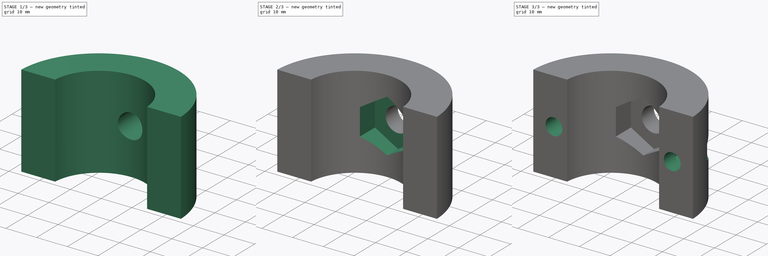
[diagram: build sequence overview — one tinted view per stage of 3, left to right]
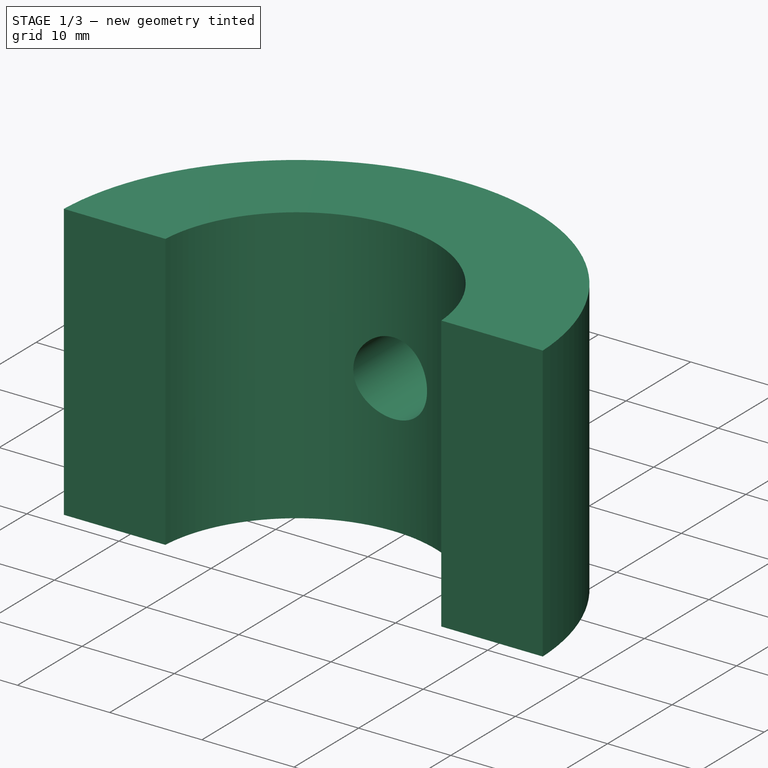
[diagram: stage 1 of 3 — iso view after this stage's code; geometry added in this stage tinted green]
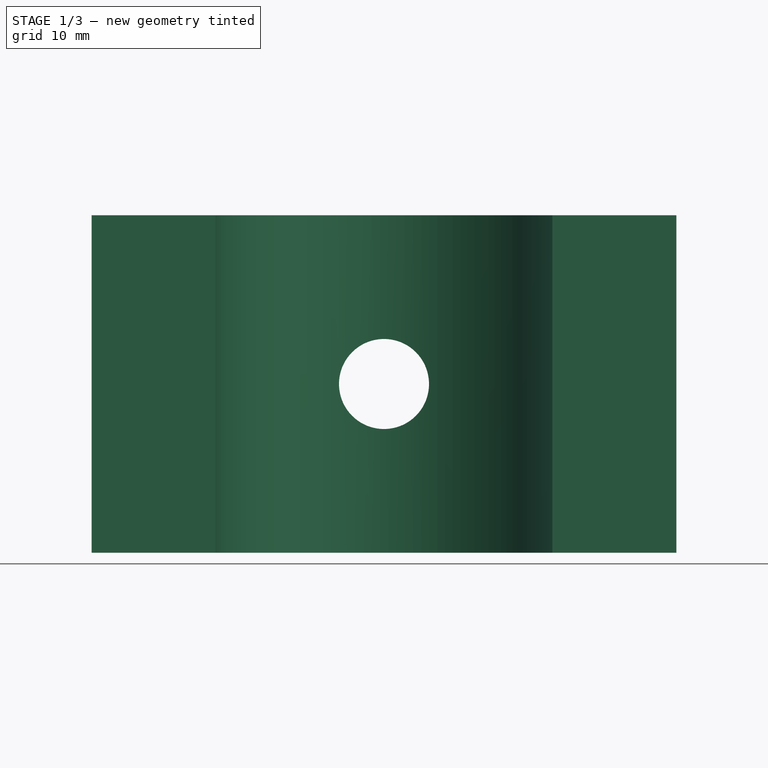
[diagram: stage 1 of 3 — front view after this stage's code; geometry added in this stage tinted green]
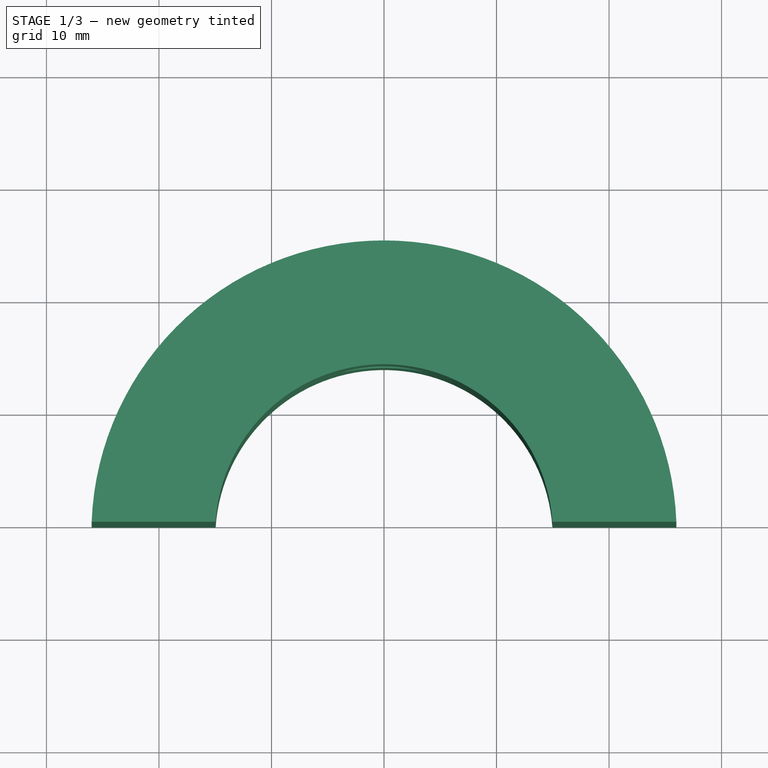
[diagram: stage 1 of 3 — top view after this stage's code; geometry added in this stage tinted green]
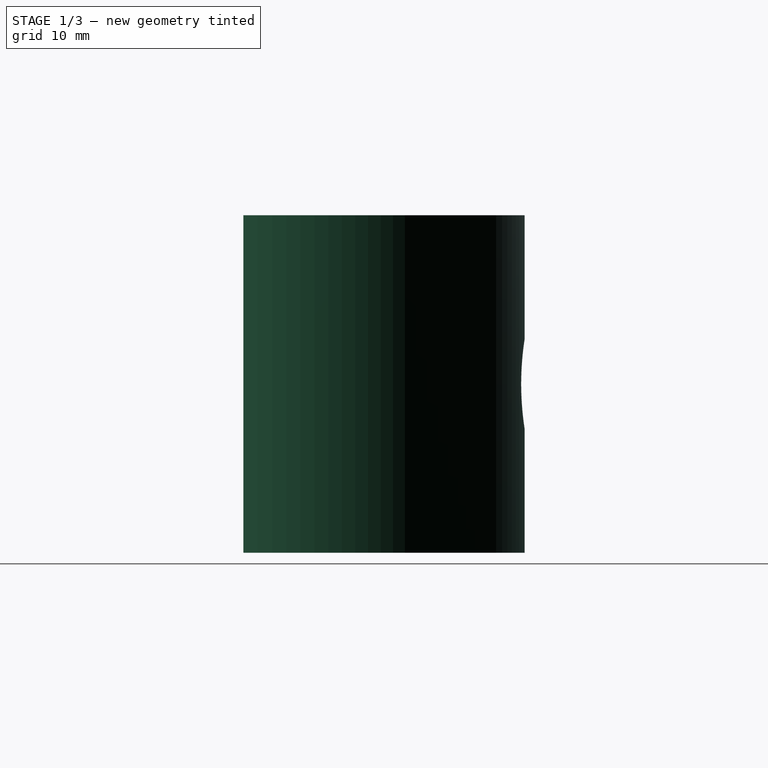
[diagram: stage 1 of 3 — right view after this stage's code; geometry added in this stage tinted green]
FCSTD DOCUMENT  (FreeCAD 1.0R39109 (Git))
Label: Landmine Adapter V2
License: All rights reserved
LicenseURL: http://en.wikipedia.org/wiki/All_rights_reserved
objects: Sketcher::SketchObject×5, PartDesign::Plane×4, PartDesign::Pocket×4, Spreadsheet::Sheet×1, PartDesign::Pad×1, PartDesign::Body×1
note: 30 computed .brp shape members not serialized (recipe doc carries the construction recipe); baked Part::Feature solids carry a one-line shape summary decoded from their .brp

FEATURE [Sketcher::SketchObject] Sketch
  ArcFitTolerance = 1e-06
  AttachmentSupport = -> [XY_Plane]
  FullyConstrained = true
  MakeInternals = false
  MapMode = 5
  expr: Constraints[10] = Spreadsheet.outer_diameter
  expr: Constraints[8] = Spreadsheet.gap / 2
  expr: Constraints[9] = Spreadsheet.inner_diameter
  sketch-geometry (4):
    g0: LineSegment StartX=-25.9808 StartY=-2.1e-15 StartZ=0 EndX=-14.9666 EndY=-2.1e-15 EndZ=0
    g1: ArcOfCircle CenterX=0 CenterY=-1 CenterZ=0 NormalX=0 NormalY=0 NormalZ=1 AngleXU=0 Radius=15 StartAngle=0.0667161 EndAngle=3.07488
    g2: ArcOfCircle CenterX=0 CenterY=-1 CenterZ=0 NormalX=0 NormalY=0 NormalZ=1 AngleXU=0 Radius=26 StartAngle=0.038471 EndAngle=3.10312
    g3: LineSegment StartX=14.9666 StartY=7e-16 StartZ=0 EndX=25.9808 EndY=-4e-16 EndZ=0
  constraints (13):
    c: Horizontal(g0,g-1)
    c: Horizontal(g0)
    c: Horizontal(g1,g-1)
    c: Coincident(g1,g0)
    c: Vertical(g1,g-1)
    c: Coincident(g2,g1)
    c: PointOnObject(g2,g-1)
    c: Coincident(g2,g0)
    c: DistanceY(g1,g-1) = 1
    c: Diameter(g1) = 30
    c: Diameter(g2) = 52
    c: Coincident(g3,g1)
    c: Coincident(g3,g2)
FEATURE [Spreadsheet::Sheet] Spreadsheet
  cells = A1='inner_diameter; B1(inner_diameter)=30; A2='outer_diameter; B2(outer_diameter)=52; A3='nut_width_across_flats; B3(nut_width_across_flats)=8.5; A4='screw_hole_diameter; B4(screw_hole_diameter)=5.5; A5='screw_head_diameter; B5(screw_head_diameter)=9.5; A6='gap; B6(gap)=2; A7='screw_nut_supporting_thickness; B7(screw_nut_supporting_thickness)=5; A8='length; B8(length)=30; A9='set_screw_hole_diameter; B9(set_screw_hole_diameter)=8; A10='set_nut_height; B10(set_nut_height)=5; A11='set_nut_width_across_flats; B11(set_nut_width_across_flats)=15; A12='set_screw_hole_height; B12(set_screw_hole_height)=20; A13='screw_hole_inward_offset; B13(screw_hole_inward_offset)=1.25
FEATURE [PartDesign::Pad] Pad
  Direction = (0,0,1)
  Length = 30
  Length2 = 10
  Profile = -> Sketch
  ReferenceAxis = -> Sketch [N_Axis]
  Suppressed = false
  Type = 0
  expr: Length = Spreadsheet.length
FEATURE [PartDesign::Plane] DatumPlane
  AttachmentOffset = pos=(0,0,26) rot=(0,0,1;0rad)
  AttachmentSupport = -> [XZ_Plane]
  Length = 62.6534
  MapMode = 2
  Placement = pos=(0,26,-5.8e-15) rot=(0,0.707107,0.707107;3.14159rad)
  ResizeMode = 0
  Width = 65.6918
  expr: .AttachmentOffset.Base.z = Spreadsheet.outer_diameter / 2
FEATURE [Sketcher::SketchObject] Sketch001
  ArcFitTolerance = 1e-06
  AttachmentSupport = -> [DatumPlane]
  FullyConstrained = true
  MakeInternals = false
  MapMode = 5
  Placement = pos=(0,26,-5.8e-15) rot=(0,0.707107,0.707107;3.14159rad)
  expr: Constraints[1] = Spreadsheet.set_screw_hole_diameter
  expr: Constraints[2] = Spreadsheet.length / 2
  sketch-geometry (1):
    g0: Circle CenterX=0 CenterY=15 CenterZ=0 NormalX=0 NormalY=0 NormalZ=1 AngleXU=0 Radius=4
  constraints (3):
    c: Vertical(g0,g-1)
    c: Diameter(g0) = 8
    c: DistanceY(g-1,g0) = 15
FEATURE [PartDesign::Pocket] Pocket
  BaseFeature = -> Pad
  Direction = (0,-1,2e-16)
  Length = 5
  Length2 = 5
  Profile = -> Sketch001
  ReferenceAxis = -> Sketch001 [N_Axis]
  Suppressed = false
  Type = 1
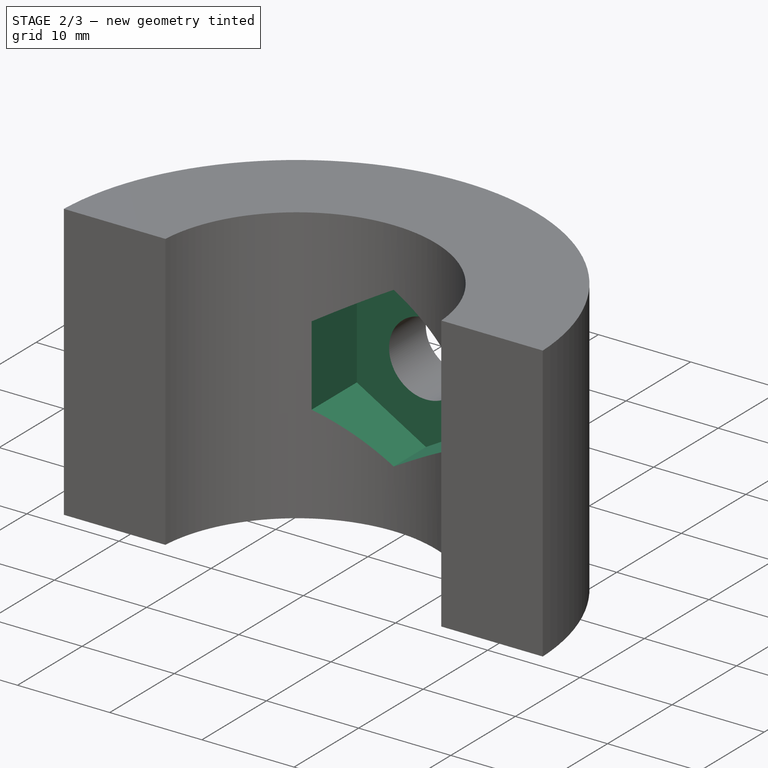
[diagram: stage 2 of 3 — iso view after this stage's code; geometry added in this stage tinted green]
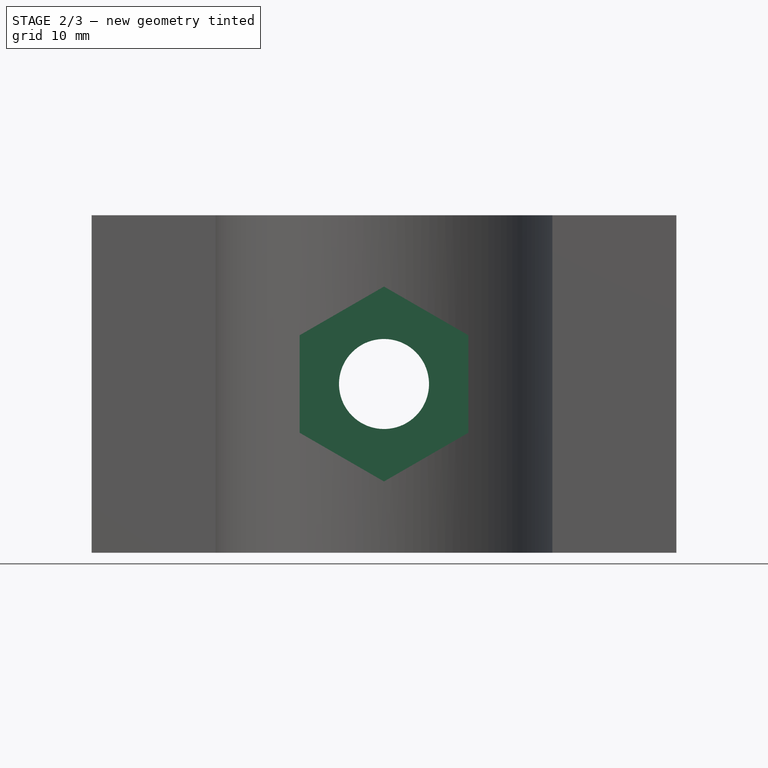
[diagram: stage 2 of 3 — front view after this stage's code; geometry added in this stage tinted green]
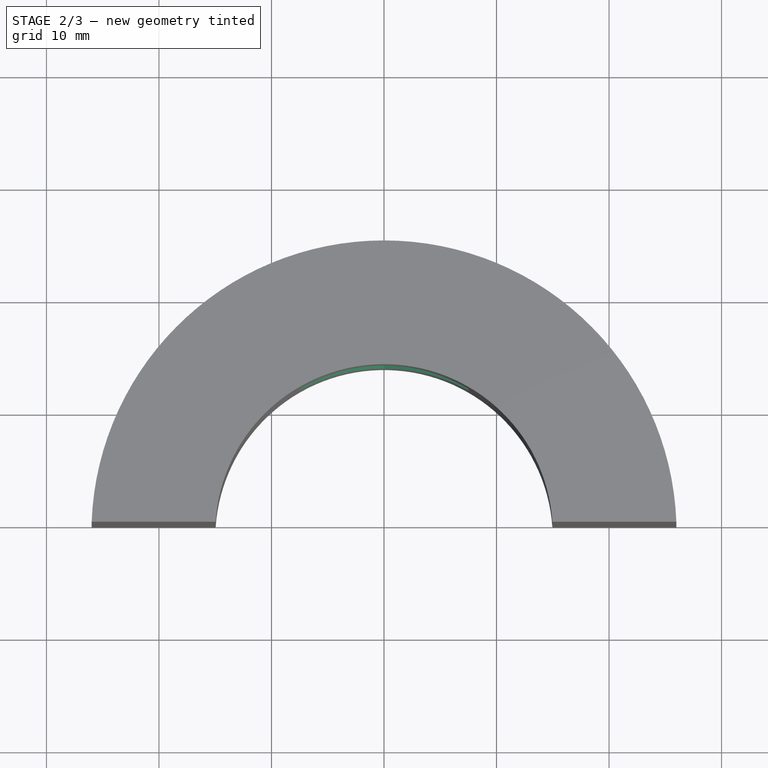
[diagram: stage 2 of 3 — top view after this stage's code; geometry added in this stage tinted green]
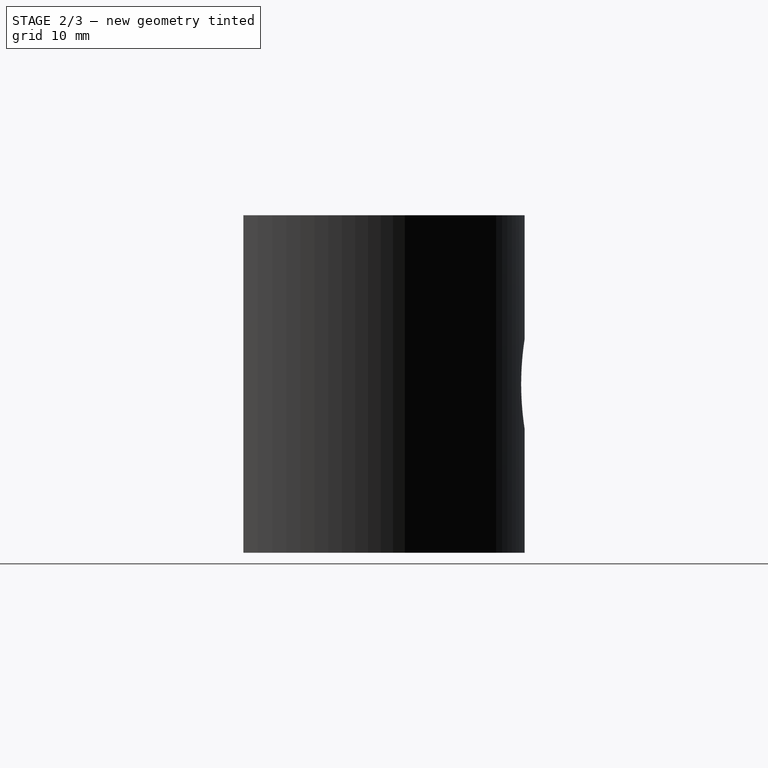
[diagram: stage 2 of 3 — right view after this stage's code; geometry added in this stage tinted green]
FEATURE [PartDesign::Plane] DatumPlane001
  AttachmentOffset = pos=(0,0,19) rot=(0,0,1;0rad)
  AttachmentSupport = -> [Pad]
  Length = 62.6534
  MapMode = 5
  Placement = pos=(0,19,-4.2e-15) rot=(0,0.707107,0.707107;3.14159rad)
  ResizeMode = 0
  Width = 65.6918
  expr: .AttachmentOffset.Base.z = Spreadsheet.inner_diameter / 2 - Spreadsheet.gap / 2 + Spreadsheet.set_nut_height
FEATURE [Sketcher::SketchObject] Sketch002
  ArcFitTolerance = 1e-06
  AttachmentSupport = -> [DatumPlane001]
  FullyConstrained = true
  MakeInternals = false
  MapMode = 5
  Placement = pos=(0,19,-4.2e-15) rot=(0,0.707107,0.707107;3.14159rad)
  expr: Constraints[18] = Spreadsheet.length / 2
  expr: Constraints[20] = Spreadsheet.set_nut_width_across_flats
  sketch-geometry (7):
    g0: LineSegment StartX=-2e-16 StartY=23.6603 StartZ=0 EndX=-7.5 EndY=19.3301 EndZ=0
    g1: LineSegment StartX=-7.5 StartY=19.3301 StartZ=0 EndX=-7.5 EndY=10.6699 EndZ=0
    g2: LineSegment StartX=-7.5 StartY=10.6699 StartZ=0 EndX=-3.9e-15 EndY=6.33975 EndZ=0
    g3: LineSegment StartX=-3.9e-15 StartY=6.33975 StartZ=0 EndX=7.5 EndY=10.6699 EndZ=0
    g4: LineSegment StartX=7.5 StartY=10.6699 StartZ=0 EndX=7.5 EndY=19.3301 EndZ=0
    g5: LineSegment StartX=7.5 StartY=19.3301 StartZ=0 EndX=-2e-16 EndY=23.6603 EndZ=0
    g6: Circle [constr] CenterX=-2e-16 CenterY=15 CenterZ=0 NormalX=0 NormalY=0 NormalZ=1 AngleXU=0 Radius=8.66025
  constraints (17):
    c: Coincident(g0,g1)
    c: Coincident(g1,g2)
    c: Coincident(g2,g3)
    c: Coincident(g3,g4)
    c: Coincident(g4,g5)
    c: Coincident(g5,g0)
    c: Equal(g0, g1-g5) x5
    c: PointOnObject(g0,g6)
    c: PointOnObject(g1,g6)
    c: PointOnObject(g2,g6)
    c: PointOnObject(g3,g6)
    c: PointOnObject(g4,g6)
    c: PointOnObject(g5,g6)
    c: Vertical(g6,g-1)
    c: DistanceY(g-1,g6) = 15
    c: Vertical(g0,g6)
    c: DistanceX(g0,g4) = 15
FEATURE [PartDesign::Pocket] Pocket001
  BaseFeature = -> Pocket
  Direction = (0,-1,2e-16)
  Length = 5
  Length2 = 1
  Profile = -> Sketch002
  ReferenceAxis = -> Sketch002 [N_Axis]
  Suppressed = false
  Type = 1
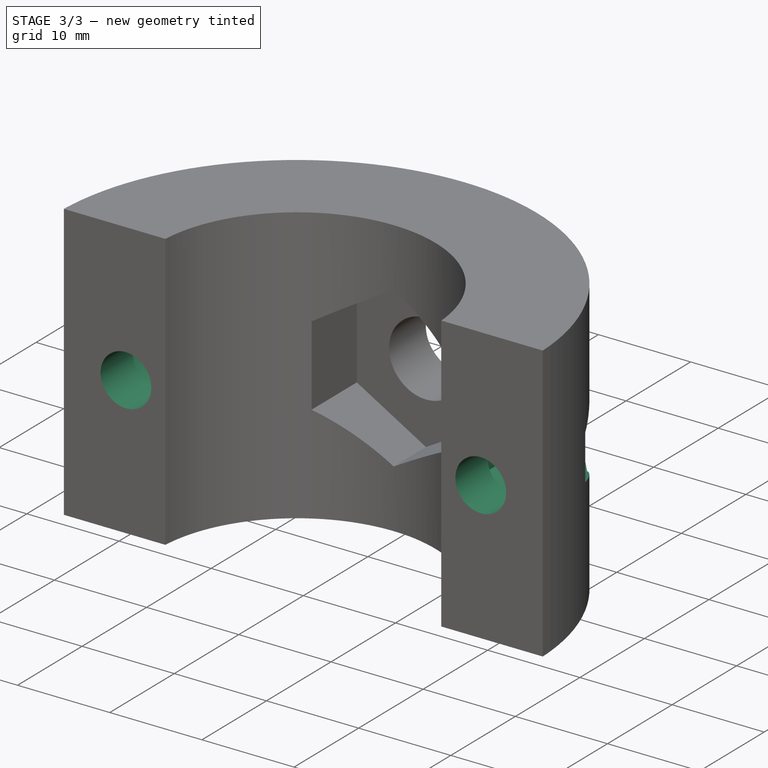
[diagram: stage 3 of 3 — iso view after this stage's code; geometry added in this stage tinted green]
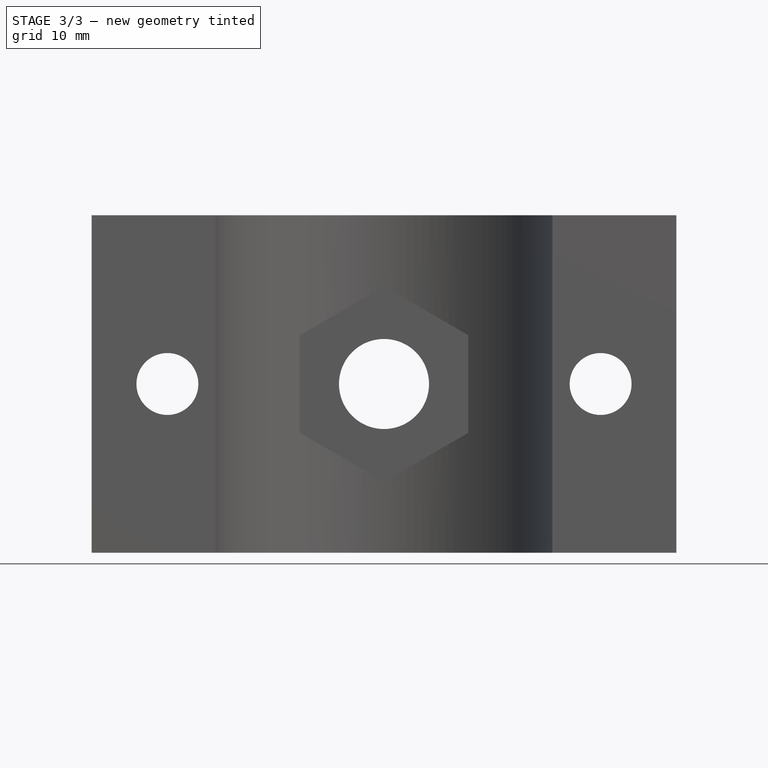
[diagram: stage 3 of 3 — front view after this stage's code; geometry added in this stage tinted green]
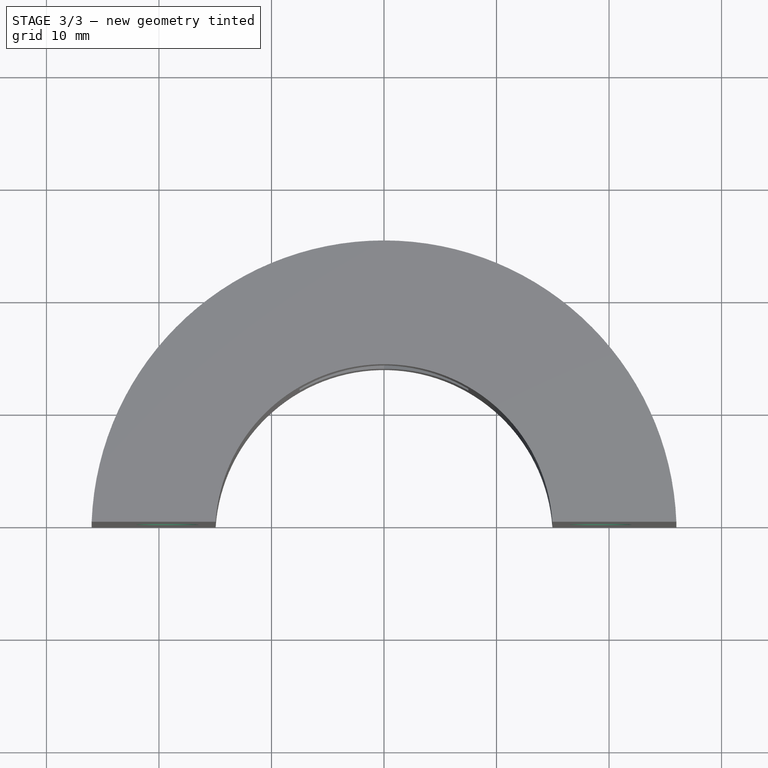
[diagram: stage 3 of 3 — top view after this stage's code; geometry added in this stage tinted green]
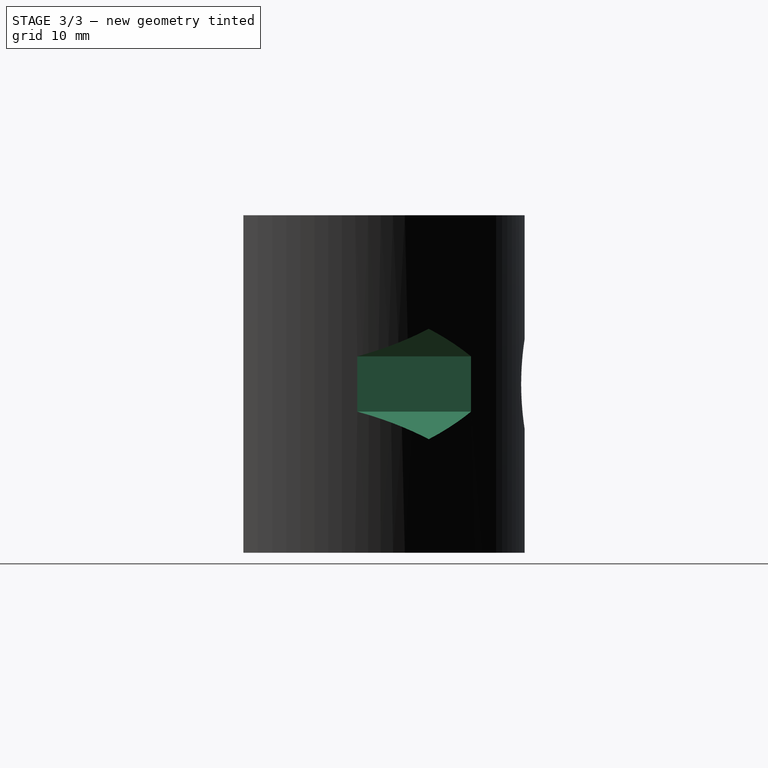
[diagram: stage 3 of 3 — right view after this stage's code; geometry added in this stage tinted green]
FEATURE [PartDesign::Plane] DatumPlane002
  AttachmentSupport = -> [Pocket001]
  Length = 62.6534
  MapMode = 5
  Placement = pos=(0,-2.1e-15,0) rot=(1,0,0;1.5708rad)
  ResizeMode = 0
  Width = 65.6918
FEATURE [Sketcher::SketchObject] Sketch003
  ArcFitTolerance = 1e-06
  AttachmentSupport = -> [DatumPlane002]
  FullyConstrained = true
  MakeInternals = false
  MapMode = 5
  Placement = pos=(0,-2.1e-15,0) rot=(1,0,0;1.5708rad)
  expr: Constraints[0] = Spreadsheet.inner_diameter / 2 + (Spreadsheet.outer_diameter - Spreadsheet.inner_diameter) / 4 - Spreadsheet.screw_hole_inward_offset
  expr: Constraints[1] = Spreadsheet.length / 2
  expr: Constraints[2] = Spreadsheet.screw_hole_diameter
  expr: Constraints[3] = Spreadsheet.screw_hole_diameter
  expr: Constraints[4] = Spreadsheet.inner_diameter / 2 + (Spreadsheet.outer_diameter - Spreadsheet.inner_diameter) / 4 - Spreadsheet.screw_hole_inward_offset
  expr: Constraints[5] = Spreadsheet.length / 2
  sketch-geometry (2):
    g0: Circle CenterX=19.25 CenterY=15 CenterZ=0 NormalX=0 NormalY=0 NormalZ=1 AngleXU=0 Radius=2.75
    g1: Circle CenterX=-19.25 CenterY=15 CenterZ=0 NormalX=0 NormalY=0 NormalZ=1 AngleXU=0 Radius=2.75
  constraints (6):
    c: DistanceX(g-1,g0) = 19.25
    c: DistanceY(g-1,g0) = 15
    c: Diameter(g0) = 5.5
    c: Diameter(g1) = 5.5
    c: DistanceX(g1,g-1) = 19.25
    c: DistanceY(g-1,g1) = 15
FEATURE [PartDesign::Pocket] Pocket002
  BaseFeature = -> Pocket001
  Direction = (0,1,-2e-16)
  Length = 5
  Length2 = 5
  Profile = -> Sketch003
  ReferenceAxis = -> Sketch003 [N_Axis]
  Suppressed = false
  Type = 1
FEATURE [PartDesign::Plane] DatumPlane003
  AttachmentOffset = pos=(0,0,5) rot=(0,0,1;0rad)
  AttachmentSupport = -> [Pocket002]
  Length = 62.6534
  MapMode = 5
  Placement = pos=(0,5,-1.1e-15) rot=(0,0.707107,0.707107;3.14159rad)
  ResizeMode = 0
  Width = 65.6918
  expr: .AttachmentOffset.Base.z = Spreadsheet.screw_nut_supporting_thickness
FEATURE [Sketcher::SketchObject] Sketch004
  ArcFitTolerance = 1e-06
  AttachmentSupport = -> [DatumPlane003]
  FullyConstrained = true
  MakeInternals = false
  MapMode = 5
  Placement = pos=(0,5,-1.1e-15) rot=(0,0.707107,0.707107;3.14159rad)
  expr: Constraints[17] = Spreadsheet.inner_diameter / 2 + (Spreadsheet.outer_diameter - Spreadsheet.inner_diameter) / 4 - Spreadsheet.screw_hole_inward_offset
  expr: Constraints[18] = Spreadsheet.inner_diameter / 2 + (Spreadsheet.outer_diameter - Spreadsheet.inner_diameter) / 4 - Spreadsheet.screw_hole_inward_offset
  expr: Constraints[19] = Spreadsheet.length / 2
  expr: Constraints[20] = Spreadsheet.length / 2
  expr: Constraints[22] = Spreadsheet.nut_width_across_flats
  expr: Constraints[23] = Spreadsheet.screw_head_diameter
  sketch-geometry (8):
    g0: Circle CenterX=19.25 CenterY=15 CenterZ=0 NormalX=0 NormalY=0 NormalZ=1 AngleXU=0 Radius=4.75
    g1: LineSegment StartX=-19.25 StartY=19.9075 StartZ=0 EndX=-23.5 EndY=17.4537 EndZ=0
    g2: LineSegment StartX=-23.5 StartY=17.4537 StartZ=0 EndX=-23.5 EndY=12.5463 EndZ=0
    g3: LineSegment StartX=-23.5 StartY=12.5463 StartZ=0 EndX=-19.25 EndY=10.0925 EndZ=0
    g4: LineSegment StartX=-19.25 StartY=10.0925 StartZ=0 EndX=-15 EndY=12.5463 EndZ=0
    g5: LineSegment StartX=-15 StartY=12.5463 StartZ=0 EndX=-15 EndY=17.4537 EndZ=0
    g6: LineSegment StartX=-15 StartY=17.4537 StartZ=0 EndX=-19.25 EndY=19.9075 EndZ=0
    g7: Circle [constr] CenterX=-19.25 CenterY=15 CenterZ=0 NormalX=0 NormalY=0 NormalZ=1 AngleXU=0 Radius=4.90748
  constraints (20):
    c: Coincident(g1,g2)
    c: Coincident(g2,g3)
    c: Coincident(g3,g4)
    c: Coincident(g4,g5)
    c: Coincident(g5,g6)
    c: Coincident(g6,g1)
    c: Equal(g1, g2-g6) x5
    c: PointOnObject(g1,g7)
    c: PointOnObject(g2,g7)
    c: PointOnObject(g3,g7)
    c: PointOnObject(g4,g7)
    c: PointOnObject(g5,g7)
    c: PointOnObject(g6,g7)
    c: DistanceX(g7,g-1) = 19.25
    c: DistanceX(g-1,g0) = 19.25
    c: DistanceY(g-1,g0) = 15
    c: DistanceY(g-1,g7) = 15
    c: Vertical(g7,g1)
    c: DistanceX(g1,g5) = 8.5
    c: Diameter(g0) = 9.5
FEATURE [PartDesign::Pocket] Pocket003
  BaseFeature = -> Pocket002
  Direction = (0,-1,2e-16)
  Length = 5
  Length2 = 5
  Profile = -> Sketch004
  ReferenceAxis = -> Sketch004 [N_Axis]
  Reversed = true
  Suppressed = false
  Type = 1
FEATURE [PartDesign::Body] Body
  AllowCompound = false
  Group = -> [Sketch,Pad,DatumPlane,Sketch001,Pocket,DatumPlane001,Sketch002,Pocket001,DatumPlane002,Sketch003,Pocket002,DatumPlane003,Sketch004,Pocket003]
  Origin = -> Origin
  Tip = -> Pocket003
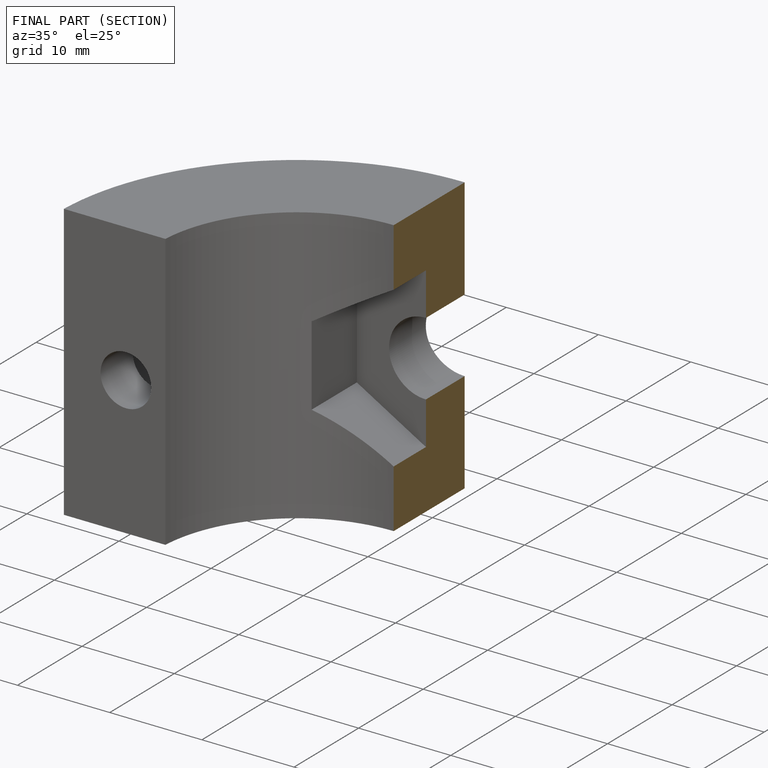
[diagram: finished part — half-section view (interior)]
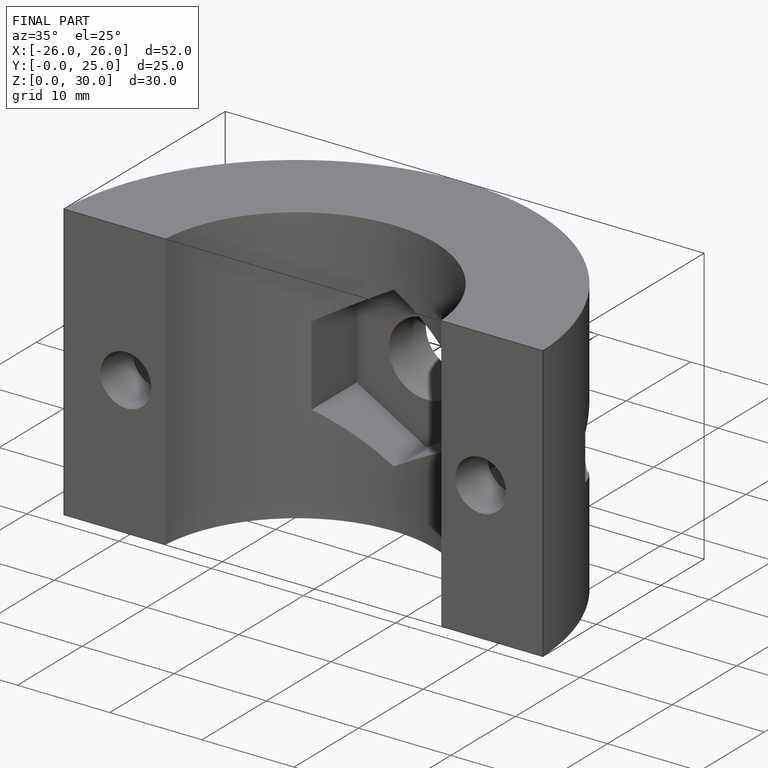
[diagram: finished part — iso view with bounding-box wireframe]
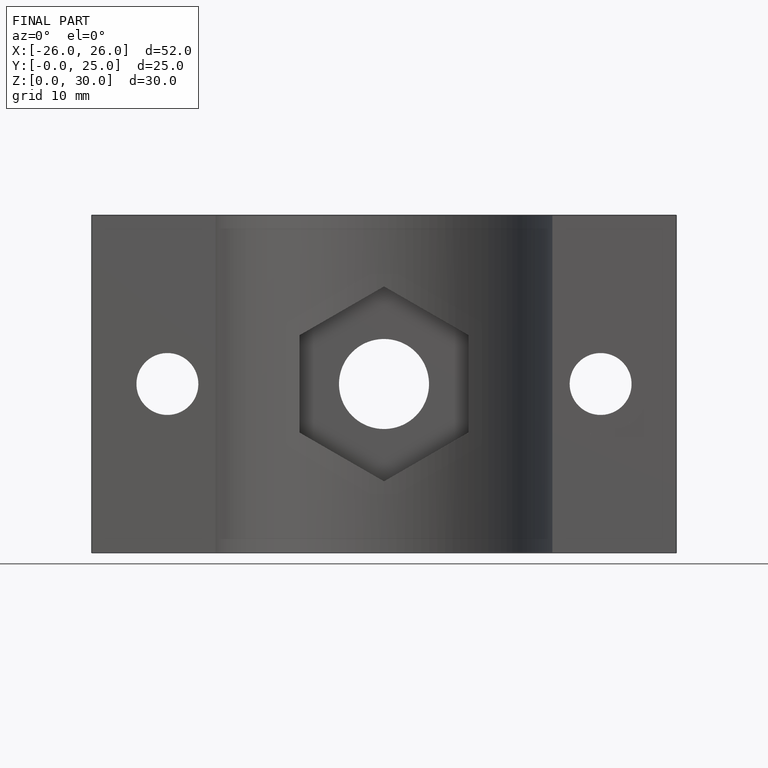
[diagram: finished part — front view with bounding-box wireframe]
